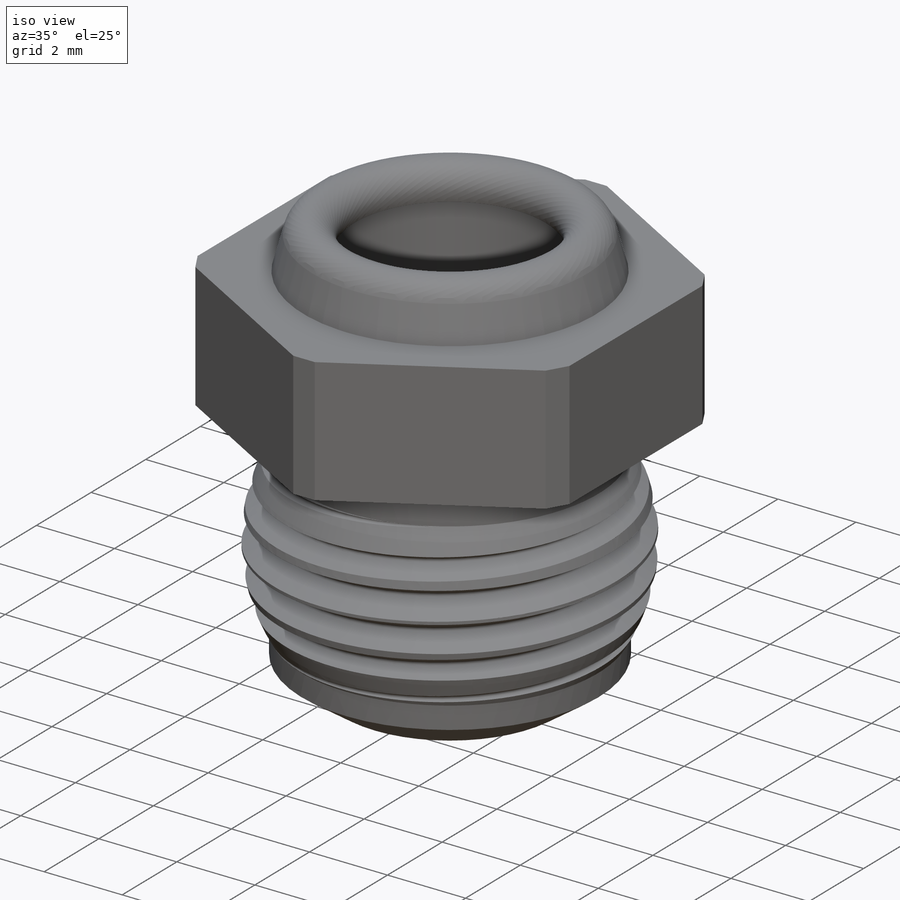
[diagram: iso view]
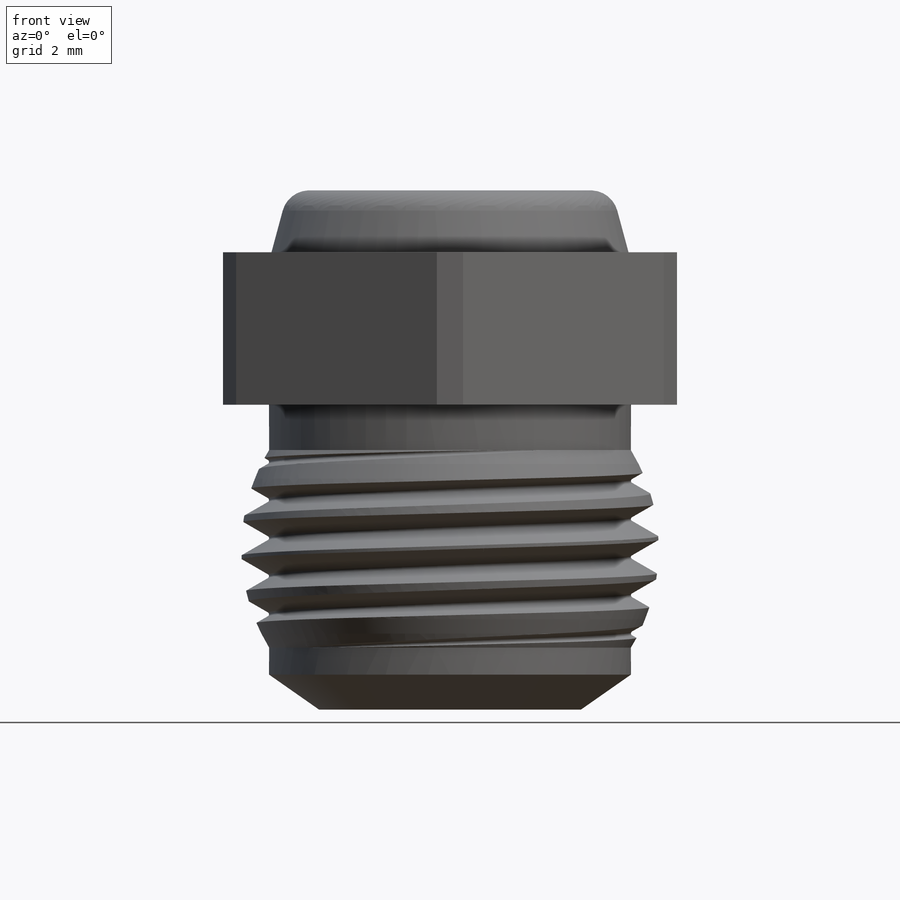
[diagram: front view]
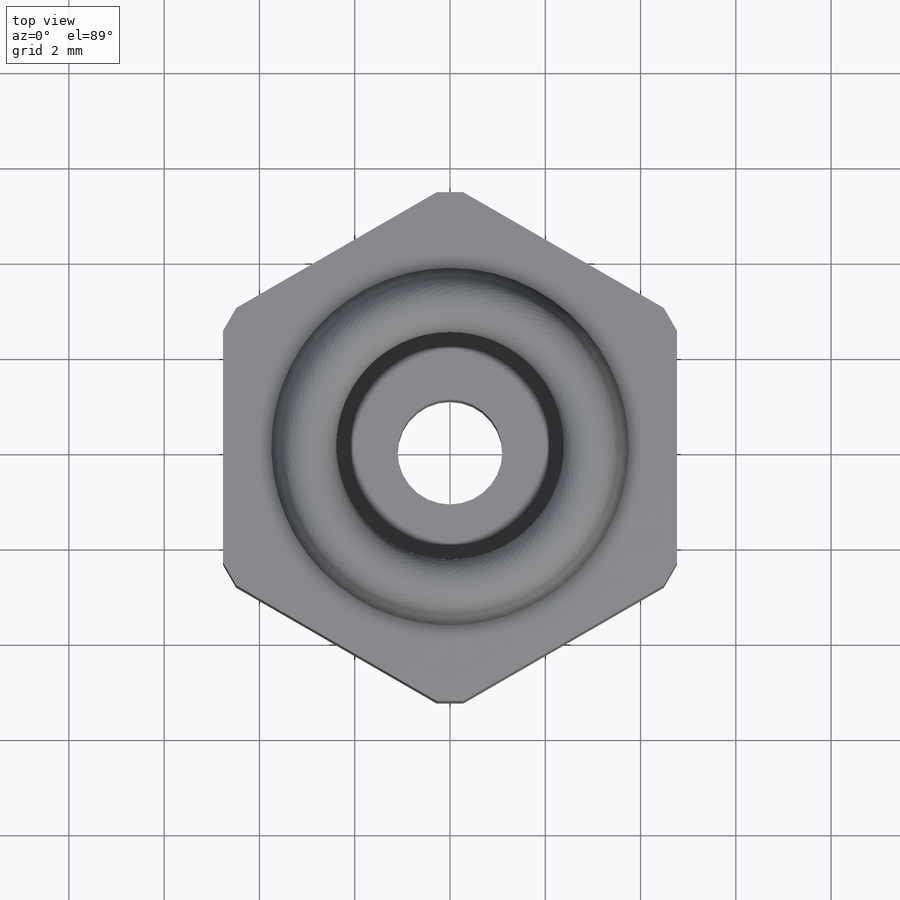
[diagram: top view]
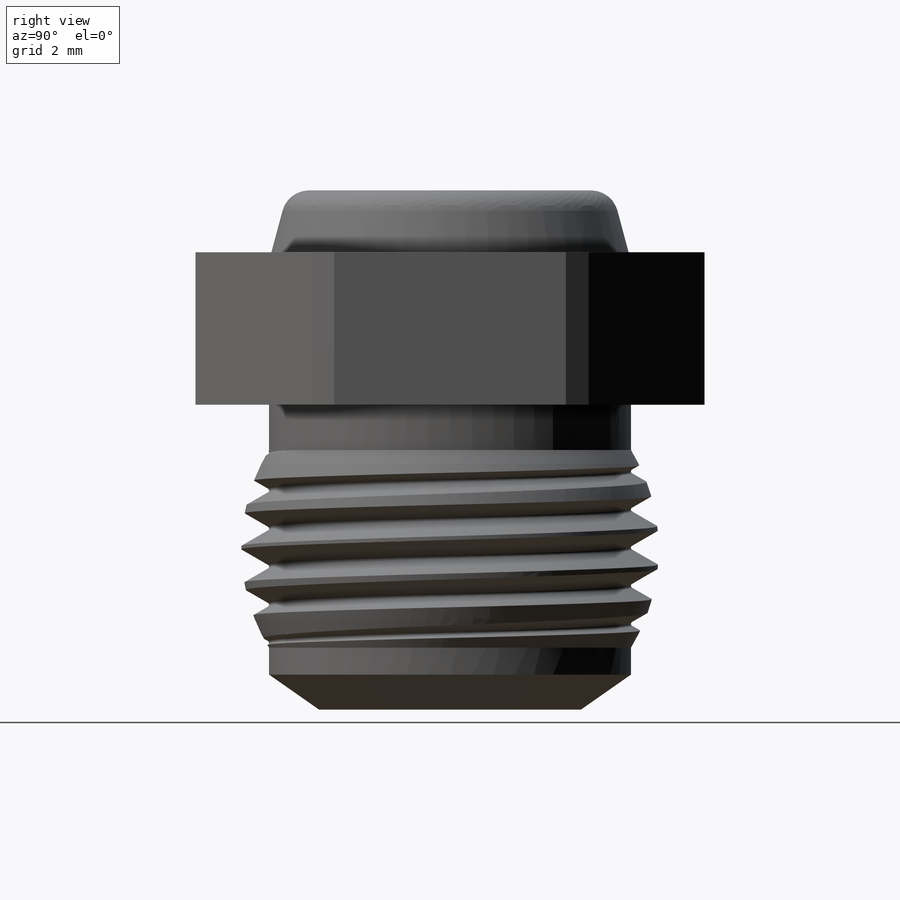
[diagram: right view]
SOLIDWORKS PART (.sldprt)
format: sldprt  version: not decoded by parser v0  size: 744,960 bytes
history: native  units: mm
features: sketch x4, material x1, revolve x1, cut_extrude x1, helix x1, sweep x1 (+13 scaffold rows collapsed)
feature tree (22):
  scaffold x13  (default folders/planes/origin — collapsed)
  material  "Plain Carbon Steel"
  sketch  "Sketch1"  dims[c1.D7=5.0mm c1.D19=~5.009028mm c2.D7=4.0mm c2.D1=2.2mm c2.D2=3.0mm c2.D3=5.5mm c2.D4=6.0mm c2.D5=1.75mm c3.D5=35.0deg c3.D6=7.6mm c3.D8=4.15mm c3.D9=1.3mm c3.D10=6.4mm c3.D11=3.2mm c3.D12=4.9mm c3.D13=7.5mm c3.D14=~4.982053mm c4.D14=105.0deg c4.D15=10.9mm c4.D16=0.55mm c5.D16=70.0deg c5.D17=10.7mm c5.D18=7.26mm c5.D7=8.6mm c5.D19=~8.760592mm]
  revolve  "Revolve1"  Angle=360deg
  sketch  "Sketch2"  dims[D1=9.53mm]
  cut_extrude  "Cut-Extrude1"  [1 undecoded]
  sketch  "Sketch3"  dims[D1=7.6mm]
  helix  "Helix/Spiral1"  Pitch=5.6mm
  sketch  "Sketch4"  dims[c1.D2=0.05mm c1.D1=0.7mm c2.D2=~0.606218mm c3.D2=60.0deg c3.D3=~0.630062mm c4.D3=~50.660706deg c4.D1=~0.716482mm c5.D1=60.0deg c5.D3=0.75mm]
  sweep  "Cut-Sweep1"
decode coverage: 6 of 8 modeling features carry decoded parameters
note: ~ marks probable driven/reference dimensions
note: 1 parameter value undecoded
note: suppression state not decoded; provenance and decode notes live in map.json
